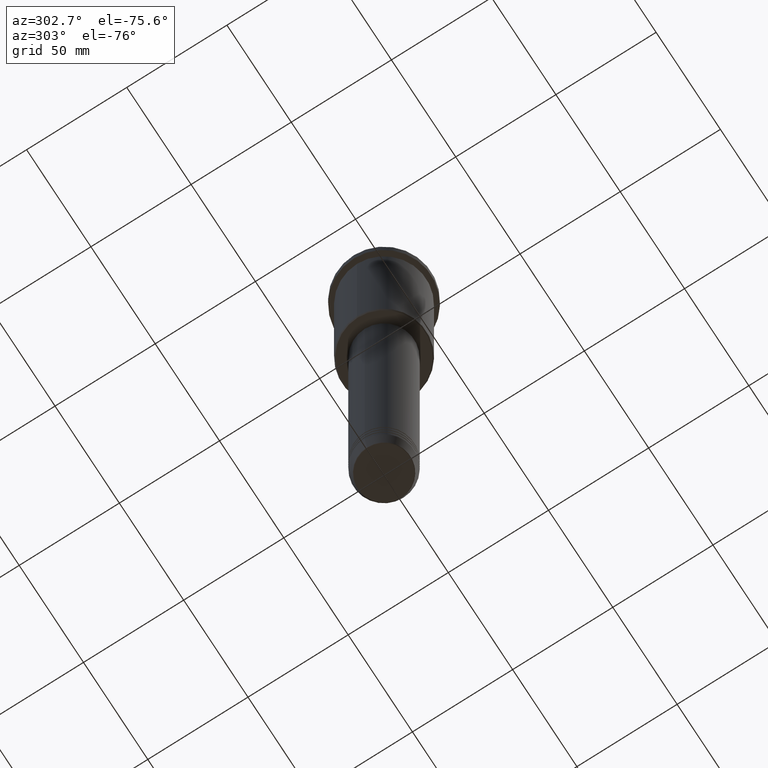
[diagram: clean part render]
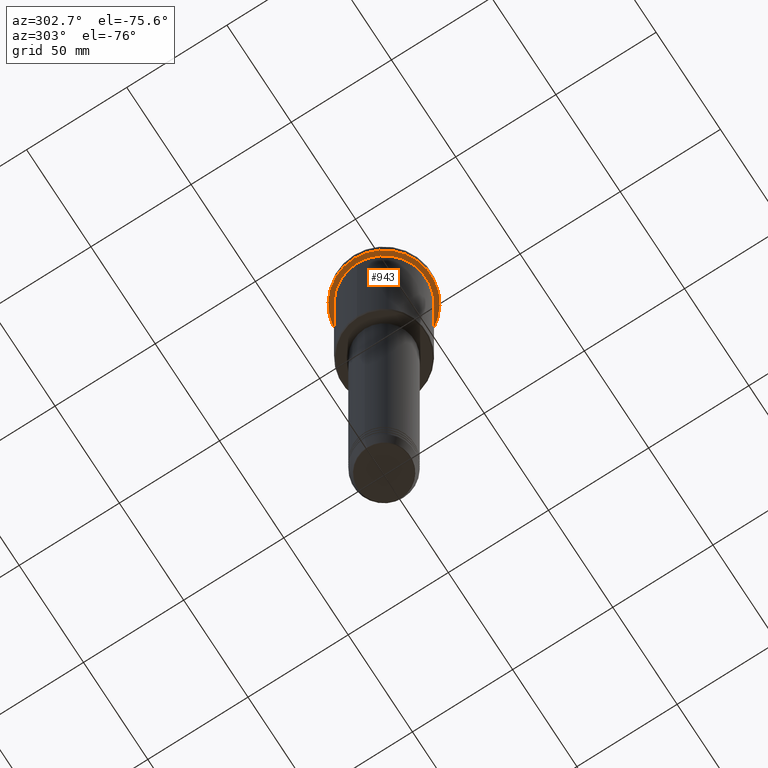
[diagram: same view with one face highlighted and labeled with its STEP entity id]
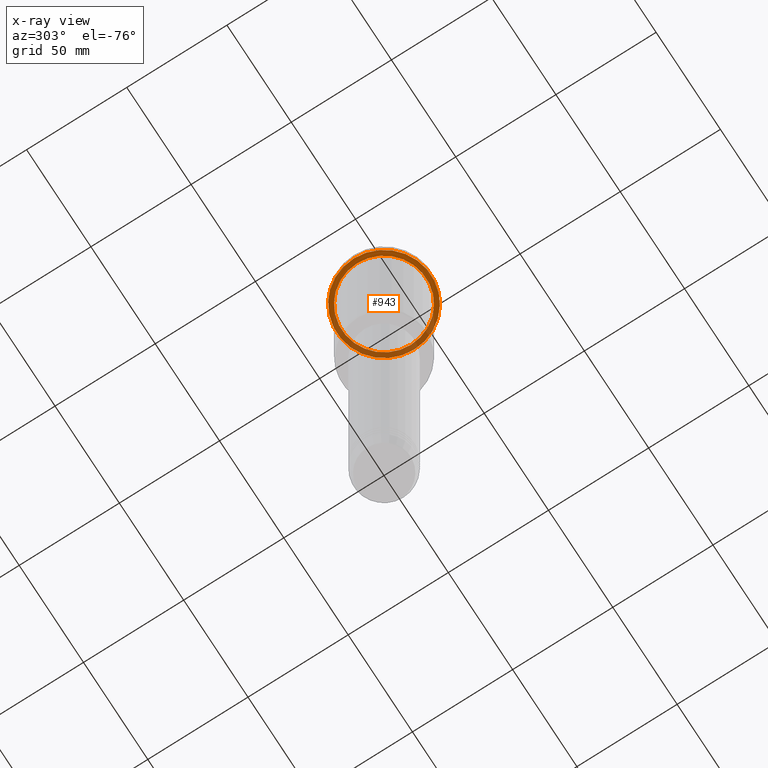
[diagram: x-ray of the same camera — body ghosted, the highlighted face saturated]
A machine part, auxiliary view. The second image highlights one B-rep face of the part: STEP entity #943.
The next image is the same camera in x-ray: the body ghosted, the highlighted face saturated — about 40% of this face is hidden behind the body in this view.
In plain terms, the highlighted planar face has unit normal (0, 0, -1).
Its self-contained STEP definition (entity closure, byte-faithful):
#11 = VERTEX_POINT ( 'NONE', #1006 ) ;
#34 = CARTESIAN_POINT ( 'NONE',  ( 0.000000000000000000, 0.000000000000000000, -15.00000000000000178 ) ) ;
#145 = VERTEX_POINT ( 'NONE', #1306 ) ;
#182 = DIRECTION ( 'NONE',  ( 0.000000000000000000, 0.000000000000000000, -1.000000000000000000 ) ) ;
#196 = EDGE_CURVE ( 'NONE', #784, #561, #805, .T. ) ;
#203 = AXIS2_PLACEMENT_3D ( 'NONE', #1225, #589, #1018 ) ;
#257 = DIRECTION ( 'NONE',  ( -0.000000000000000000, -0.000000000000000000, 1.000000000000000000 ) ) ;
#269 = DIRECTION ( 'NONE',  ( 1.000000000000000000, 0.000000000000000000, 0.000000000000000000 ) ) ;
#288 = ORIENTED_EDGE ( 'NONE', *, *, #196, .T. ) ;
#291 = FACE_OUTER_BOUND ( 'NONE', #693, .T. ) ;
#382 = ORIENTED_EDGE ( 'NONE', *, *, #403, .F. ) ;
#383 = DIRECTION ( 'NONE',  ( 1.000000000000000000, 0.000000000000000000, 0.000000000000000000 ) ) ;
#391 = CIRCLE ( 'NONE', #437, 23.50000000000000355 ) ;
#403 = EDGE_CURVE ( 'NONE', #11, #145, #505, .T. ) ;
#437 = AXIS2_PLACEMENT_3D ( 'NONE', #614, #716, #383 ) ;
#469 = DIRECTION ( 'NONE',  ( -0.000000000000000000, -0.000000000000000000, 1.000000000000000000 ) ) ;
#488 = CARTESIAN_POINT ( 'NONE',  ( 0.000000000000000000, 0.000000000000000000, -15.00000000000000178 ) ) ;
#505 = CIRCLE ( 'NONE', #1258, 23.50000000000000355 ) ;
#561 = VERTEX_POINT ( 'NONE', #758 ) ;
#588 = ORIENTED_EDGE ( 'NONE', *, *, #829, .F. ) ;
#589 = DIRECTION ( 'NONE',  ( -0.000000000000000000, -0.000000000000000000, 1.000000000000000000 ) ) ;
#614 = CARTESIAN_POINT ( 'NONE',  ( 0.000000000000000000, 0.000000000000000000, -15.00000000000000178 ) ) ;
#627 = DIRECTION ( 'NONE',  ( -1.000000000000000000, 0.000000000000000000, 0.000000000000000000 ) ) ;
#693 = EDGE_LOOP ( 'NONE', ( #382, #588 ) ) ;
#697 = CARTESIAN_POINT ( 'NONE',  ( 20.99999999999999289, 2.571758278209440872E-15, -15.00000000000000178 ) ) ;
#708 = ORIENTED_EDGE ( 'NONE', *, *, #1119, .T. ) ;
#716 = DIRECTION ( 'NONE',  ( -0.000000000000000000, -0.000000000000000000, 1.000000000000000000 ) ) ;
#726 = PLANE ( 'NONE',  #1171 ) ;
#758 = CARTESIAN_POINT ( 'NONE',  ( -20.99999999999999289, 0.000000000000000000, -15.00000000000000178 ) ) ;
#784 = VERTEX_POINT ( 'NONE', #697 ) ;
#805 = CIRCLE ( 'NONE', #1277, 20.99999999999999289 ) ;
#829 = EDGE_CURVE ( 'NONE', #145, #11, #391, .T. ) ;
#943 = ADVANCED_FACE ( 'NONE', ( #1271, #291 ), #726, .T. ) ;
#955 = DIRECTION ( 'NONE',  ( -1.000000000000000000, 0.000000000000000000, -0.000000000000000000 ) ) ;
#1006 = CARTESIAN_POINT ( 'NONE',  ( 23.50000000000000355, 0.000000000000000000, -15.00000000000000178 ) ) ;
#1018 = DIRECTION ( 'NONE',  ( -1.000000000000000000, 0.000000000000000000, 0.000000000000000000 ) ) ;
#1064 = CIRCLE ( 'NONE', #203, 20.99999999999999289 ) ;
#1119 = EDGE_CURVE ( 'NONE', #561, #784, #1064, .T. ) ;
#1166 = CARTESIAN_POINT ( 'NONE',  ( 0.000000000000000000, 23.50000000000000355, -15.00000000000000178 ) ) ;
#1171 = AXIS2_PLACEMENT_3D ( 'NONE', #1166, #182, #955 ) ;
#1224 = EDGE_LOOP ( 'NONE', ( #708, #288 ) ) ;
#1225 = CARTESIAN_POINT ( 'NONE',  ( 0.000000000000000000, 0.000000000000000000, -15.00000000000000178 ) ) ;
#1258 = AXIS2_PLACEMENT_3D ( 'NONE', #488, #257, #269 ) ;
#1271 = FACE_BOUND ( 'NONE', #1224, .T. ) ;
#1277 = AXIS2_PLACEMENT_3D ( 'NONE', #34, #469, #627 ) ;
#1306 = CARTESIAN_POINT ( 'NONE',  ( -23.50000000000000711, 2.877919977996281109E-15, -15.00000000000000178 ) ) ;